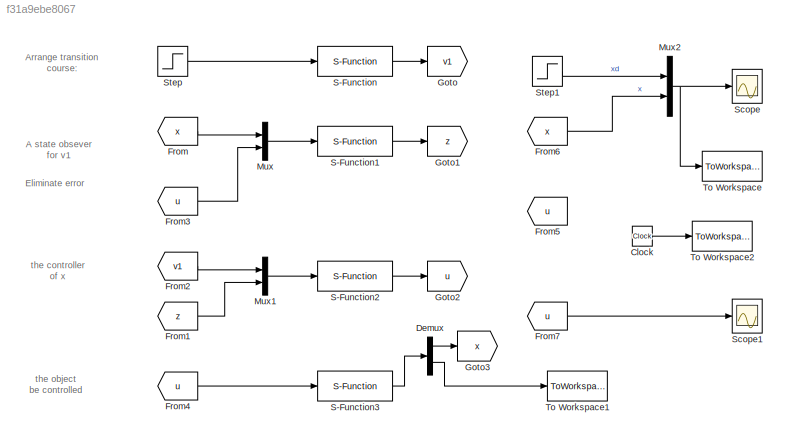
MODEL slx_f31a9ebe8067
KIND model
CONFIG InitFcn = global r;\nglobal h;\nglobal b0;\nr=30;\nh=1e-3;\nb0=1;
BLOCK [Clock] Clock
BLOCK [Demux] Demux
  DisplayOption = bar
  Outputs = 2
  Ports = [1, 2]
BLOCK [From] From
  GotoTag = x
BLOCK [From] From1
  GotoTag = z
BLOCK [From] From2
  GotoTag = v1
BLOCK [From] From3
  GotoTag = u
BLOCK [From] From4
  GotoTag = u
BLOCK [From] From5
  GotoTag = u
BLOCK [From] From6
  GotoTag = x
BLOCK [From] From7
  GotoTag = u
BLOCK [Goto] Goto
  GotoTag = v1
BLOCK [Goto] Goto1
  GotoTag = z
BLOCK [Goto] Goto2
  GotoTag = u
BLOCK [Goto] Goto3
  GotoTag = x
BLOCK [Mux] Mux
  DisplayOption = bar
  Inputs = 2
  Ports = [2, 1]
BLOCK [Mux] Mux1
  DisplayOption = bar
  Inputs = 2
  Ports = [2, 1]
BLOCK [Mux] Mux2
  DisplayOption = bar
  Inputs = 2
  Ports = [2, 1]
BLOCK [S-Function] S-Function
  EnableBusSupport = off
  FunctionName = ctrl5_2_3tran
  Ports = [1, 1]
BLOCK [S-Function] S-Function1
  EnableBusSupport = off
  FunctionName = ctrl5_2_3ESO
  Ports = [1, 1]
BLOCK [S-Function] S-Function2
  EnableBusSupport = off
  FunctionName = ctrl5_2_3ctrl
  Ports = [1, 1]
BLOCK [S-Function] S-Function3
  EnableBusSupport = off
  FunctionName = ctrl5_2_3obj
  Ports = [1, 1]
BLOCK [Scope] Scope
  DataFormat = StructureWithTime
  Floating = off
  LimitDataPoints = off
  NumInputPorts = 1
  Ports = [1]
  SampleTime = 0
  ShowLegends = off
  YMax = 1.1
  YMin = 0
  ZoomMode = yonly
BLOCK [Scope] Scope1
  DataFormat = StructureWithTime
  Floating = off
  LimitDataPoints = off
  NumInputPorts = 1
  Ports = [1]
  SampleTime = 0
  SaveName = ScopeData1
  ShowLegends = off
  TimeRange = 10
  YMax = 2.25
  YMin = -2.25
  ZoomMode = yonly
BLOCK [Step] Step
  SampleTime = 0
  Time = 0
BLOCK [Step] Step1
  SampleTime = 0
  Time = 0
BLOCK [ToWorkspace] To Workspace
  MaxDataPoints = inf
  Ports = [1]
  SampleTime = -1
  VariableName = track
BLOCK [ToWorkspace] To Workspace1
  MaxDataPoints = inf
  Ports = [1]
  SampleTime = -1
  VariableName = noise
BLOCK [ToWorkspace] To Workspace2
  MaxDataPoints = inf
  Ports = [1]
  SampleTime = -1
  VariableName = t
ANNOTATION (root): A state obsever for v1
ANNOTATION (root): Arrange transition course:
ANNOTATION (root): Eliminate error
ANNOTATION (root): the controller of x
ANNOTATION (root): the object be controlled
LINE Clock:1 -> To Workspace2:1
LINE Demux:1 -> Goto3:1
LINE Demux:2 -> To Workspace1:1
LINE From1:1 -> Mux1:2
LINE From2:1 -> Mux1:1
LINE From3:1 -> Mux:2
LINE From4:1 -> S-Function3:1
LINE From6:1 -> Mux2:2
LINE From7:1 -> Scope1:1
LINE From:1 -> Mux:1
LINE Mux1:1 -> S-Function2:1
NET Mux2:1 -> Scope:1, To Workspace:1
LINE Mux:1 -> S-Function1:1
LINE S-Function1:1 -> Goto1:1
LINE S-Function2:1 -> Goto2:1
LINE S-Function3:1 -> Demux:1
LINE S-Function:1 -> Goto:1
LINE Step1:1 -> Mux2:1
LINE Step:1 -> S-Function:1
note: NET lines group one-source signal fan-out (src -> all destinations, sorted); 1:1 wires keep LINE
